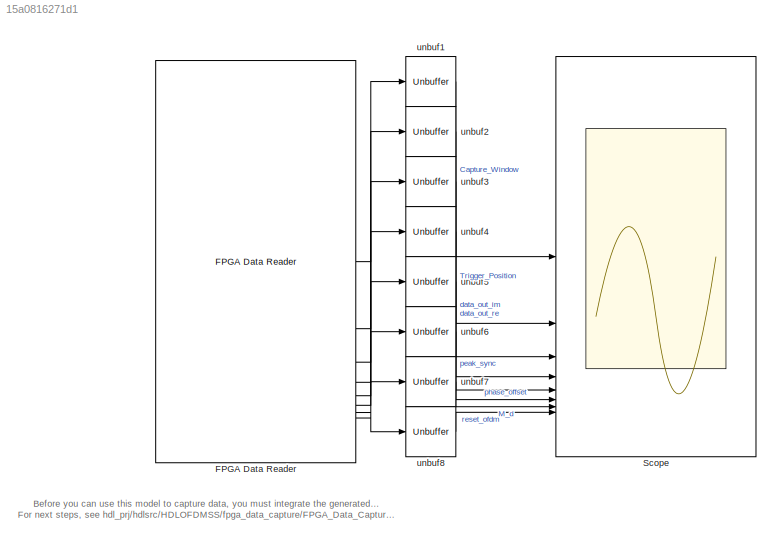
MODEL slx_15a0816271d1
KIND model
CONFIG AbsTol = auto
CONFIG EnableMultiTasking = off
CONFIG FixedStep = auto
CONFIG MaxStep = auto
CONFIG MinStep = auto
CONFIG RelTol = 1e-3
CONFIG SampleTimeConstraint = Unconstrained
CONFIG SolverName = VariableStepAuto
CONFIG StartTime = 0.0
CONFIG StopTime = 127
BLOCK [Reference] FPGA Data Reader  REF=hdlverifier_fpga_reader/FPGA Data Reader
  SourceBlock = hdlverifier_fpga_reader/FPGA Data Reader
  SourceType = hdlverifier.internal.DataCapture.SimulinkBlock
BLOCK [Scope] Scope
  Floating = off
  NumInputPorts = 8
BLOCK [Unbuffer] unbuf1
BLOCK [Unbuffer] unbuf2
BLOCK [Unbuffer] unbuf3
BLOCK [Unbuffer] unbuf4
BLOCK [Unbuffer] unbuf5
BLOCK [Unbuffer] unbuf6
BLOCK [Unbuffer] unbuf7
BLOCK [Unbuffer] unbuf8
ANNOTATION (root): Before you can use this model to capture data, you must integrate the generated IP into your FPGA design. For next steps, see hdl_prj/hdlsrc/HDLOFDMSS/fpga_data_capture/FPGA_Data_Capture_Component_Generation_Report.html .
LINE FPGA Data Reader:1 -> unbuf1:1
LINE FPGA Data Reader:2 -> unbuf2:1
LINE FPGA Data Reader:3 -> unbuf3:1
LINE FPGA Data Reader:4 -> unbuf4:1
LINE FPGA Data Reader:5 -> unbuf5:1
LINE FPGA Data Reader:6 -> unbuf6:1
LINE FPGA Data Reader:7 -> unbuf7:1
LINE FPGA Data Reader:8 -> unbuf8:1
LINE unbuf1:1 -> Scope:1
LINE unbuf2:1 -> Scope:2
LINE unbuf3:1 -> Scope:3
LINE unbuf4:1 -> Scope:4
LINE unbuf5:1 -> Scope:5
LINE unbuf6:1 -> Scope:6
LINE unbuf7:1 -> Scope:7
LINE unbuf8:1 -> Scope:8
